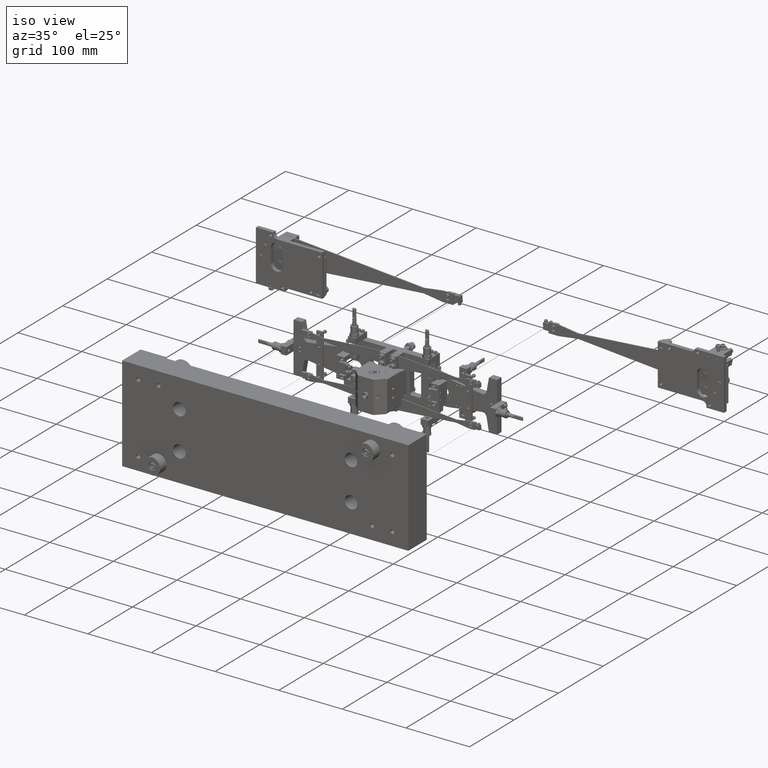
[diagram: clean part render]
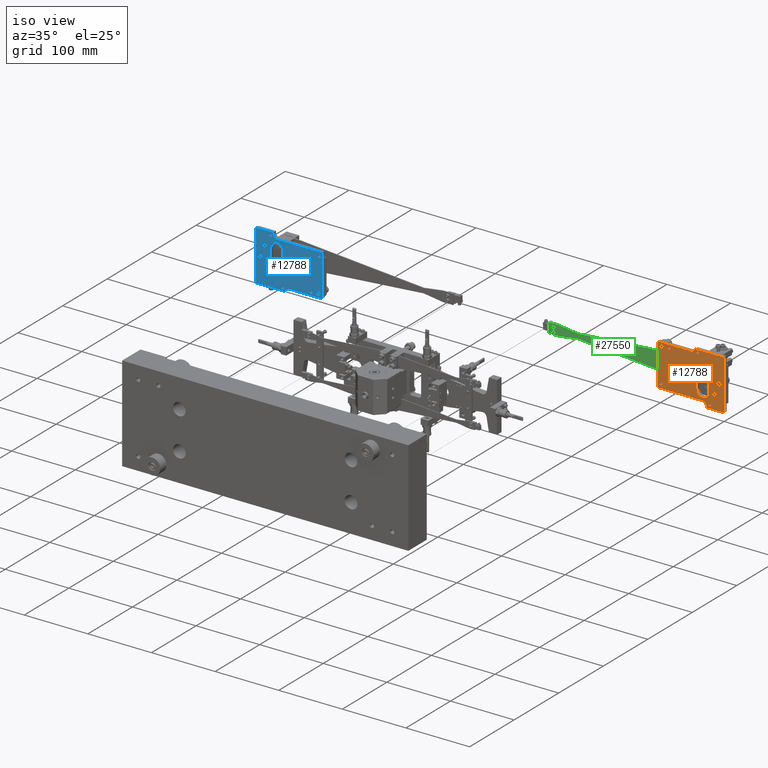
[diagram: same view with three faces highlighted in distinct colors, each labeled with its STEP entity id]
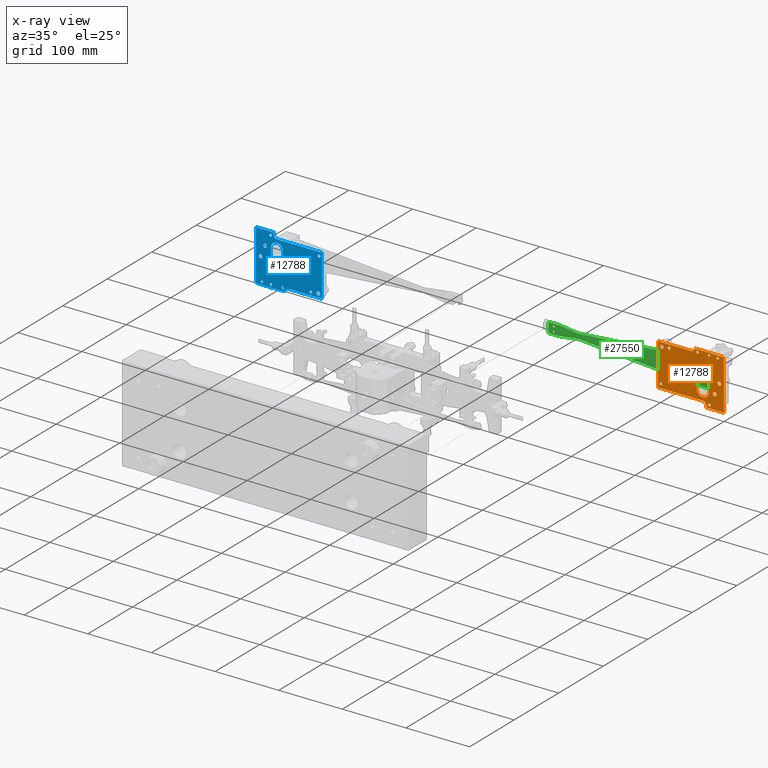
[diagram: x-ray of the same camera — body ghosted, the three highlighted faces saturated]
A machine part, iso view with three faces highlighted in distinct colors.
The next image is the same camera in x-ray (body ghosted, the three faces saturated) — at least one of them is partly hidden behind the body in this view.
Their STEP definitions:

[orange] entity #12788 — the highlighted planar face has unit normal (-0, 1, 0).
#120 = VECTOR ( 'NONE', #66383, 39.37007874015748100 ) ;
#169 = AXIS2_PLACEMENT_3D ( 'NONE', #18273, #54292, #23412 ) ;
#295 = LINE ( 'NONE', #49155, #1903 ) ;
#486 = ORIENTED_EDGE ( 'NONE', *, *, #64295, .F. ) ;
#817 = EDGE_CURVE ( 'NONE', #40714, #33942, #37384, .T. ) ;
#874 = ORIENTED_EDGE ( 'NONE', *, *, #43501, .T. ) ;
#881 = DIRECTION ( 'NONE',  ( -1.054711873393886700E-015, 8.881784197001151700E-016, 1.000000000000000000 ) ) ;
#901 = VERTEX_POINT ( 'NONE', #49514 ) ;
#1856 = VERTEX_POINT ( 'NONE', #15061 ) ;
#1878 = VERTEX_POINT ( 'NONE', #19987 ) ;
#1888 = DIRECTION ( 'NONE',  ( 0.0000000000000000000, 1.000000000000000000, 6.106226635438325500E-016 ) ) ;
#1903 = VECTOR ( 'NONE', #54338, 39.37007874015748100 ) ;
#2072 = CARTESIAN_POINT ( 'NONE',  ( -2.559055118110199300, 0.2362204724408052400, 0.4375496550452270800 ) ) ;
#2442 = AXIS2_PLACEMENT_3D ( 'NONE', #18528, #54549, #23695 ) ;
#2724 = EDGE_LOOP ( 'NONE', ( #27391, #5022 ) ) ;
#2829 = AXIS2_PLACEMENT_3D ( 'NONE', #32799, #1888, #37900 ) ;
#3291 = EDGE_CURVE ( 'NONE', #37937, #16223, #8103, .T. ) ;
#3482 = EDGE_LOOP ( 'NONE', ( #62775, #7053, #29532, #12511, #63963, #34082, #59148, #5008, #19353 ) ) ;
#3587 = CARTESIAN_POINT ( 'NONE',  ( -3.858267716535504400, 0.2362204724409451000, 1.786762253470460400 ) ) ;
#3657 = DIRECTION ( 'NONE',  ( 0.0000000000000000000, -1.000000000000000000, -6.106226635438325500E-016 ) ) ;
#3883 = VERTEX_POINT ( 'NONE', #29710 ) ;
#4597 = CARTESIAN_POINT ( 'NONE',  ( -2.066929133858289400, 0.2362204724409112100, -0.9942039206801501800 ) ) ;
#5008 = ORIENTED_EDGE ( 'NONE', *, *, #66371, .T. ) ;
#5019 = EDGE_CURVE ( 'NONE', #60706, #30838, #45100, .T. ) ;
#5022 = ORIENTED_EDGE ( 'NONE', *, *, #65708, .F. ) ;
#5315 = FACE_OUTER_BOUND ( 'NONE', #3482, .T. ) ;
#5571 = VERTEX_POINT ( 'NONE', #23361 ) ;
#5694 = CARTESIAN_POINT ( 'NONE',  ( -2.933070866141796400, 0.2362204724407811200, 1.550541781029503500 ) ) ;
#5710 = VERTEX_POINT ( 'NONE', #8946 ) ;
#5872 = ORIENTED_EDGE ( 'NONE', *, *, #64603, .T. ) ;
#6347 = VECTOR ( 'NONE', #62817, 39.37007874015748100 ) ;
#6878 = AXIS2_PLACEMENT_3D ( 'NONE', #55853, #24999, #61021 ) ;
#6943 = FACE_BOUND ( 'NONE', #33172, .T. ) ;
#7053 = ORIENTED_EDGE ( 'NONE', *, *, #14782, .T. ) ;
#7210 = DIRECTION ( 'NONE',  ( -1.000000000000000000, -5.551115123125700700E-017, 1.332267629550168100E-015 ) ) ;
#7220 = DIRECTION ( 'NONE',  ( -1.456985596620922800E-015, 6.374311985216537300E-016, 1.000000000000000000 ) ) ;
#7238 = VECTOR ( 'NONE', #881, 39.37007874015748100 ) ;
#7497 = DIRECTION ( 'NONE',  ( 0.0000000000000000000, 1.000000000000000000, 6.106226635438325500E-016 ) ) ;
#7707 = CARTESIAN_POINT ( 'NONE',  ( -2.961047036948467200, 0.2362204724409428500, -1.214077596773175600 ) ) ;
#8103 = CIRCLE ( 'NONE', #52593, 0.09000000000000095400 ) ;
#8571 = FACE_BOUND ( 'NONE', #58107, .T. ) ;
#8884 = LINE ( 'NONE', #61858, #7238 ) ;
#8946 = CARTESIAN_POINT ( 'NONE',  ( -2.216354183178005600, 0.2362204724408008000, 1.537364307673204200 ) ) ;
#9896 = CARTESIAN_POINT ( 'NONE',  ( -0.4645088474031506800, 0.2362204724408904500, 1.394087820379262200 ) ) ;
#10034 = CARTESIAN_POINT ( 'NONE',  ( -2.934055118110236600, 0.2362204724410609200, 0.4375496550452232500 ) ) ;
#11022 = VERTEX_POINT ( 'NONE', #3587 ) ;
#11581 = DIRECTION ( 'NONE',  ( 0.0000000000000000000, 1.000000000000000000, 6.106226635438325500E-016 ) ) ;
#11620 = CIRCLE ( 'NONE', #47130, 0.07874015748031584800 ) ;
#11702 = CARTESIAN_POINT ( 'NONE',  ( -3.484251968503975200, 0.2362204724408926100, 1.708022095990146600 ) ) ;
#12347 = CARTESIAN_POINT ( 'NONE',  ( -2.216354183178005600, 0.2362204724408008500, 1.627364307673205200 ) ) ;
#12511 = ORIENTED_EDGE ( 'NONE', *, *, #20955, .T. ) ;
#12761 = CARTESIAN_POINT ( 'NONE',  ( -2.216354183178005600, 0.2362204724408008500, 1.627364307673205200 ) ) ;
#12788 = ADVANCED_FACE ( 'NONE', ( #8571, #61717, #25495, #6943, #60152, #20670, #46442, #32804, #19076, #5315, #58549 ), #51024, .F. ) ;
#12804 = CARTESIAN_POINT ( 'NONE',  ( -3.484251968503975200, 0.2362204724408925900, 1.550541781029515900 ) ) ;
#13041 = LINE ( 'NONE', #40644, #66172 ) ;
#13045 = CARTESIAN_POINT ( 'NONE',  ( -2.559055118110216600, 0.2362204724410303400, -0.4309542819626399600 ) ) ;
#13362 = EDGE_CURVE ( 'NONE', #30121, #61654, #25433, .T. ) ;
#13444 = DIRECTION ( 'NONE',  ( 0.0000000000000000000, -1.000000000000000000, -6.106226635438325500E-016 ) ) ;
#14429 = ORIENTED_EDGE ( 'NONE', *, *, #13362, .T. ) ;
#14643 = VERTEX_POINT ( 'NONE', #38207 ) ;
#14782 = EDGE_CURVE ( 'NONE', #59122, #22074, #52369, .T. ) ;
#14920 = AXIS2_PLACEMENT_3D ( 'NONE', #12347, #48367, #17533 ) ;
#15061 = CARTESIAN_POINT ( 'NONE',  ( -2.775590551181137800, 0.2362204724409210600, -1.318897637795306300 ) ) ;
#15123 = DIRECTION ( 'NONE',  ( 1.517693329813463400E-015, -7.588466649067317000E-016, -1.000000000000000000 ) ) ;
#15243 = DIRECTION ( 'NONE',  ( 3.663735981262974000E-015, -6.661338147750862300E-016, -1.000000000000000000 ) ) ;
#16223 = VERTEX_POINT ( 'NONE', #23552 ) ;
#16458 = ORIENTED_EDGE ( 'NONE', *, *, #24368, .T. ) ;
#16487 = DIRECTION ( 'NONE',  ( 0.0000000000000000000, -1.000000000000000000, -6.106226635438325500E-016 ) ) ;
#16880 = VERTEX_POINT ( 'NONE', #7707 ) ;
#17482 = ORIENTED_EDGE ( 'NONE', *, *, #53499, .T. ) ;
#17533 = DIRECTION ( 'NONE',  ( 0.0000000000000000000, -7.588466649067317000E-016, -1.000000000000000000 ) ) ;
#17939 = DIRECTION ( 'NONE',  ( 0.0000000000000000000, -7.588466649067317000E-016, -1.000000000000000000 ) ) ;
#18034 = ORIENTED_EDGE ( 'NONE', *, *, #29175, .T. ) ;
#18225 = DIRECTION ( 'NONE',  ( 1.456985596620922800E-015, -6.374311985216537300E-016, -1.000000000000000000 ) ) ;
#18273 = CARTESIAN_POINT ( 'NONE',  ( -3.286914397751458300, 0.2362204724408904500, -0.4309575191541101200 ) ) ;
#18528 = CARTESIAN_POINT ( 'NONE',  ( 0.04999144790838175300, 0.2362204724410292300, -0.7465696594909726500 ) ) ;
#18694 = CARTESIAN_POINT ( 'NONE',  ( -2.933070866141796400, 0.2362204724407811800, 1.629281938509819200 ) ) ;
#19076 = FACE_BOUND ( 'NONE', #31140, .T. ) ;
#19298 = CIRCLE ( 'NONE', #24655, 0.3750000000000045000 ) ;
#19353 = ORIENTED_EDGE ( 'NONE', *, *, #27469, .T. ) ;
#19392 = EDGE_CURVE ( 'NONE', #11022, #14643, #295, .T. ) ;
#19510 = LINE ( 'NONE', #10034, #33241 ) ;
#19735 = CIRCLE ( 'NONE', #44241, 0.2500000000000030500 ) ;
#19987 = CARTESIAN_POINT ( 'NONE',  ( -2.961047036948467200, 0.2362204724409428500, -1.034077596773175000 ) ) ;
#20120 = CARTESIAN_POINT ( 'NONE',  ( -3.484251968503975200, 0.2362204724408926400, 1.629281938509831800 ) ) ;
#20150 = DIRECTION ( 'NONE',  ( -1.559232882975874300E-030, -1.000000000000000000, 6.661338147750861300E-016 ) ) ;
#20236 = LINE ( 'NONE', #61217, #61313 ) ;
#20652 = VERTEX_POINT ( 'NONE', #43607 ) ;
#20670 = FACE_BOUND ( 'NONE', #34622, .T. ) ;
#20955 = EDGE_CURVE ( 'NONE', #1856, #901, #13041, .T. ) ;
#20960 = ORIENTED_EDGE ( 'NONE', *, *, #34636, .T. ) ;
#21679 = ORIENTED_EDGE ( 'NONE', *, *, #817, .T. ) ;
#22074 = VERTEX_POINT ( 'NONE', #47444 ) ;
#22147 = DIRECTION ( 'NONE',  ( 0.0000000000000000000, 1.000000000000000000, 6.106226635438325500E-016 ) ) ;
#22370 = DIRECTION ( 'NONE',  ( 0.0000000000000000000, 1.000000000000000000, 6.106226635438325500E-016 ) ) ;
#22532 = CARTESIAN_POINT ( 'NONE',  ( -2.525590551181099700, 0.2362204724407713500, -0.9942039206801507300 ) ) ;
#22638 = EDGE_CURVE ( 'NONE', #3883, #5571, #51549, .T. ) ;
#22693 = CIRCLE ( 'NONE', #23260, 0.09000000000000081500 ) ;
#23137 = CARTESIAN_POINT ( 'NONE',  ( 0.04999144790838175300, 0.2362204724410292300, -0.7465696594909726500 ) ) ;
#23260 = AXIS2_PLACEMENT_3D ( 'NONE', #47320, #16487, #52502 ) ;
#23273 = CIRCLE ( 'NONE', #30518, 0.07874015748031584800 ) ;
#23361 = CARTESIAN_POINT ( 'NONE',  ( 2.048130814034795000E-015, 0.2362204724408062400, 1.478691387328690000 ) ) ;
#23412 = DIRECTION ( 'NONE',  ( 0.0000000000000000000, 5.782411586589301400E-016, 1.000000000000000000 ) ) ;
#23552 = CARTESIAN_POINT ( 'NONE',  ( -0.4645088474031505700, 0.2362204724408903900, 1.304087820379261200 ) ) ;
#23644 = CIRCLE ( 'NONE', #50818, 0.09000000000000095400 ) ;
#23695 = DIRECTION ( 'NONE',  ( 1.233125830473437200E-015, -7.588466649067306100E-016, -1.000000000000000000 ) ) ;
#23852 = DIRECTION ( 'NONE',  ( 0.0000000000000000000, -8.673617379883937900E-016, -1.000000000000000000 ) ) ;
#24335 = EDGE_LOOP ( 'NONE', ( #49993, #56388 ) ) ;
#24368 = EDGE_CURVE ( 'NONE', #5710, #32417, #23644, .T. ) ;
#24443 = ORIENTED_EDGE ( 'NONE', *, *, #39472, .T. ) ;
#24655 = AXIS2_PLACEMENT_3D ( 'NONE', #2072, #38082, #7220 ) ;
#24777 = DIRECTION ( 'NONE',  ( 0.0000000000000000000, -1.000000000000000000, -6.106226635438325500E-016 ) ) ;
#24824 = CARTESIAN_POINT ( 'NONE',  ( -2.961047036948467200, 0.2362204724409429100, -1.124077596773174600 ) ) ;
#24914 = LINE ( 'NONE', #42107, #6347 ) ;
#24999 = DIRECTION ( 'NONE',  ( 0.0000000000000000000, -1.000000000000000000, -6.106226635438325500E-016 ) ) ;
#25288 = DIRECTION ( 'NONE',  ( 0.0000000000000000000, -8.673617379883937900E-016, -1.000000000000000000 ) ) ;
#25433 = CIRCLE ( 'NONE', #2442, 0.09000000000000109300 ) ;
#25495 = FACE_BOUND ( 'NONE', #24335, .T. ) ;
#26002 = ORIENTED_EDGE ( 'NONE', *, *, #65712, .F. ) ;
#26913 = AXIS2_PLACEMENT_3D ( 'NONE', #53024, #22147, #58186 ) ;
#27069 = EDGE_CURVE ( 'NONE', #1878, #16880, #22693, .T. ) ;
#27391 = ORIENTED_EDGE ( 'NONE', *, *, #22638, .F. ) ;
#27469 = EDGE_CURVE ( 'NONE', #36533, #61081, #20236, .T. ) ;
#27598 = CIRCLE ( 'NONE', #14920, 0.09000000000000095400 ) ;
#28356 = DIRECTION ( 'NONE',  ( 1.233125830473437200E-015, -7.588466649067306100E-016, -1.000000000000000000 ) ) ;
#28456 = DIRECTION ( 'NONE',  ( 0.0000000000000000000, -1.000000000000000000, -6.106226635438325500E-016 ) ) ;
#28683 = VERTEX_POINT ( 'NONE', #60009 ) ;
#29153 = CARTESIAN_POINT ( 'NONE',  ( -3.286914397751399300, 0.2362204724408905300, -0.5490677553745823000 ) ) ;
#29175 = EDGE_CURVE ( 'NONE', #55148, #65826, #19298, .T. ) ;
#29182 = LINE ( 'NONE', #30439, #120 ) ;
#29245 = DIRECTION ( 'NONE',  ( 0.0000000000000000000, -1.000000000000000000, -6.106226635438325500E-016 ) ) ;
#29532 = ORIENTED_EDGE ( 'NONE', *, *, #53040, .T. ) ;
#29710 = CARTESIAN_POINT ( 'NONE',  ( 2.338134060817367600E-015, 0.2362204724408063800, 1.228691387328690200 ) ) ;
#30062 = DIRECTION ( 'NONE',  ( 0.0000000000000000000, -7.588466649067328800E-016, -1.000000000000000000 ) ) ;
#30121 = VERTEX_POINT ( 'NONE', #65439 ) ;
#30158 = VECTOR ( 'NONE', #7210, 39.37007874015748100 ) ;
#30326 = CARTESIAN_POINT ( 'NONE',  ( -2.559055118110216100, 0.2362204724410305600, -0.8059542819626400700 ) ) ;
#30439 = CARTESIAN_POINT ( 'NONE',  ( -2.184055118110266800, 0.2362204724409210600, 0.4375496550452519500 ) ) ;
#30518 = AXIS2_PLACEMENT_3D ( 'NONE', #55632, #24777, #60804 ) ;
#30838 = VERTEX_POINT ( 'NONE', #50563 ) ;
#31140 = EDGE_LOOP ( 'NONE', ( #66412, #44280 ) ) ;
#31375 = CIRCLE ( 'NONE', #55529, 0.07874015748031584800 ) ;
#31639 = VERTEX_POINT ( 'NONE', #33054 ) ;
#31856 = ORIENTED_EDGE ( 'NONE', *, *, #3291, .T. ) ;
#32253 = CARTESIAN_POINT ( 'NONE',  ( 0.04999144790838164900, 0.2362204724410291700, -0.6565696594909726800 ) ) ;
#32259 = CIRCLE ( 'NONE', #63681, 0.09000000000000109300 ) ;
#32417 = VERTEX_POINT ( 'NONE', #39445 ) ;
#32799 = CARTESIAN_POINT ( 'NONE',  ( -3.567051587444203300, 0.2362204724407724300, 0.2290043419386945900 ) ) ;
#32804 = FACE_BOUND ( 'NONE', #61171, .T. ) ;
#32888 = CARTESIAN_POINT ( 'NONE',  ( -2.184055118110266800, 0.2362204724409210600, 0.4375496550452519500 ) ) ;
#33054 = CARTESIAN_POINT ( 'NONE',  ( -3.567051587444189900, 0.2362204724407725200, 0.1108941057182218400 ) ) ;
#33172 = EDGE_LOOP ( 'NONE', ( #14429, #64143 ) ) ;
#33241 = VECTOR ( 'NONE', #15243, 39.37007874015748100 ) ;
#33480 = CARTESIAN_POINT ( 'NONE',  ( -2.934055118110236600, 0.2362204724410609200, 0.4375496550452232500 ) ) ;
#33942 = VERTEX_POINT ( 'NONE', #30326 ) ;
#34082 = ORIENTED_EDGE ( 'NONE', *, *, #19392, .T. ) ;
#34407 = EDGE_CURVE ( 'NONE', #16223, #37937, #61940, .T. ) ;
#34562 = CARTESIAN_POINT ( 'NONE',  ( -2.559055118110216600, 0.2362204724410303400, -0.4309542819626399600 ) ) ;
#34622 = EDGE_LOOP ( 'NONE', ( #26002, #38092 ) ) ;
#34636 = EDGE_CURVE ( 'NONE', #49132, #35191, #23273, .T. ) ;
#35191 = VERTEX_POINT ( 'NONE', #11702 ) ;
#36533 = VERTEX_POINT ( 'NONE', #47116 ) ;
#37384 = CIRCLE ( 'NONE', #37961, 0.3750000000000045000 ) ;
#37900 = DIRECTION ( 'NONE',  ( 0.0000000000000000000, 5.782411586589274800E-016, 1.000000000000000000 ) ) ;
#37937 = VERTEX_POINT ( 'NONE', #43689 ) ;
#37940 = EDGE_CURVE ( 'NONE', #30838, #60706, #31375, .T. ) ;
#37961 = AXIS2_PLACEMENT_3D ( 'NONE', #13045, #49062, #18225 ) ;
#38082 = DIRECTION ( 'NONE',  ( 0.0000000000000000000, -1.000000000000000000, -6.106226635438325500E-016 ) ) ;
#38092 = ORIENTED_EDGE ( 'NONE', *, *, #41141, .F. ) ;
#38207 = CARTESIAN_POINT ( 'NONE',  ( -2.066929133858241400, 0.2362204724407516700, 1.786762253470447700 ) ) ;
#38351 = CARTESIAN_POINT ( 'NONE',  ( -3.286914397751458300, 0.2362204724408904500, -0.4309575191541101200 ) ) ;
#39445 = CARTESIAN_POINT ( 'NONE',  ( -2.216354183178005600, 0.2362204724408008000, 1.717364307673205000 ) ) ;
#39472 = EDGE_CURVE ( 'NONE', #35191, #49132, #11620, .T. ) ;
#39676 = DIRECTION ( 'NONE',  ( 1.456985596620922800E-015, -6.374311985216537300E-016, -1.000000000000000000 ) ) ;
#39892 = EDGE_CURVE ( 'NONE', #61081, #59122, #43785, .T. ) ;
#40644 = CARTESIAN_POINT ( 'NONE',  ( -2.775590551181137800, 0.2362204724409210600, -1.318897637795306300 ) ) ;
#40714 = VERTEX_POINT ( 'NONE', #44938 ) ;
#40741 = DIRECTION ( 'NONE',  ( 1.221245327087657800E-015, -6.661338147750860400E-016, -1.000000000000000000 ) ) ;
#41141 = EDGE_CURVE ( 'NONE', #31639, #62878, #64264, .T. ) ;
#42107 = CARTESIAN_POINT ( 'NONE',  ( -0.1574803149606497400, 0.2362204724408915600, 1.589911859769648900 ) ) ;
#42402 = CARTESIAN_POINT ( 'NONE',  ( 2.185478394931410600E-015, 0.2362204724408063200, 1.353691387328690200 ) ) ;
#42981 = AXIS2_PLACEMENT_3D ( 'NONE', #4597, #20150, #56184 ) ;
#43501 = EDGE_CURVE ( 'NONE', #33942, #28683, #60038, .T. ) ;
#43533 = DIRECTION ( 'NONE',  ( 0.0000000000000000000, 5.782411586589301400E-016, 1.000000000000000000 ) ) ;
#43607 = CARTESIAN_POINT ( 'NONE',  ( -3.286914397751458300, 0.2362204724408905300, -0.3128472829336365600 ) ) ;
#43689 = CARTESIAN_POINT ( 'NONE',  ( -0.4645088474031507400, 0.2362204724408903900, 1.484087820379262000 ) ) ;
#43708 = VECTOR ( 'NONE', #45029, 39.37007874015748100 ) ;
#43785 = LINE ( 'NONE', #48468, #30158 ) ;
#43797 = EDGE_LOOP ( 'NONE', ( #16458, #17482 ) ) ;
#43833 = EDGE_CURVE ( 'NONE', #14643, #65648, #19735, .T. ) ;
#44241 = AXIS2_PLACEMENT_3D ( 'NONE', #44244, #13444, #49449 ) ;
#44244 = CARTESIAN_POINT ( 'NONE',  ( -1.822644219567093100, 0.2362204724410620300, 1.839911859769656000 ) ) ;
#44280 = ORIENTED_EDGE ( 'NONE', *, *, #37940, .T. ) ;
#44938 = CARTESIAN_POINT ( 'NONE',  ( -2.934055118110232100, 0.2362204724409112100, -0.4309542819626610000 ) ) ;
#45029 = DIRECTION ( 'NONE',  ( 1.221245327087657800E-015, -6.661338147750860400E-016, -1.000000000000000000 ) ) ;
#45100 = CIRCLE ( 'NONE', #6878, 0.07874015748031584800 ) ;
#45650 = AXIS2_PLACEMENT_3D ( 'NONE', #60042, #29245, #65188 ) ;
#45926 = DIRECTION ( 'NONE',  ( 0.0000000000000000000, -1.000000000000000000, -6.106226635438325500E-016 ) ) ;
#46442 = FACE_BOUND ( 'NONE', #61708, .T. ) ;
#46852 = AXIS2_PLACEMENT_3D ( 'NONE', #42402, #11581, #47615 ) ;
#47116 = CARTESIAN_POINT ( 'NONE',  ( 0.2362204724409451000, 0.2362204724409145100, 1.589911859769655800 ) ) ;
#47130 = AXIS2_PLACEMENT_3D ( 'NONE', #20120, #56147, #25288 ) ;
#47320 = CARTESIAN_POINT ( 'NONE',  ( -2.961047036948467200, 0.2362204724409429100, -1.124077596773174600 ) ) ;
#47444 = CARTESIAN_POINT ( 'NONE',  ( -2.775590551181159600, 0.2362204724407811800, -1.244203920680163800 ) ) ;
#47615 = DIRECTION ( 'NONE',  ( -1.221245327087656600E-015, 5.463695987328459400E-016, 1.000000000000000000 ) ) ;
#47815 = CIRCLE ( 'NONE', #61773, 0.1181102362204735800 ) ;
#47851 = CARTESIAN_POINT ( 'NONE',  ( -1.822644219567119300, 0.2362204724408052400, 1.589911859769656900 ) ) ;
#48367 = DIRECTION ( 'NONE',  ( 0.0000000000000000000, -1.000000000000000000, -6.106226635438325500E-016 ) ) ;
#48468 = CARTESIAN_POINT ( 'NONE',  ( -2.775590551181083200, 0.2362204724409451000, -0.9942039206801373000 ) ) ;
#48795 = DIRECTION ( 'NONE',  ( 0.0000000000000000000, -1.000000000000000000, -6.106226635438325500E-016 ) ) ;
#49005 = AXIS2_PLACEMENT_3D ( 'NONE', #34562, #3657, #39676 ) ;
#49062 = DIRECTION ( 'NONE',  ( 0.0000000000000000000, -1.000000000000000000, -6.106226635438325500E-016 ) ) ;
#49132 = VERTEX_POINT ( 'NONE', #12804 ) ;
#49155 = CARTESIAN_POINT ( 'NONE',  ( -2.066929133858241400, 0.2362204724407516700, 1.786762253470447700 ) ) ;
#49449 = DIRECTION ( 'NONE',  ( 1.092739197465691900E-015, -6.829619984160574200E-016, -1.000000000000000000 ) ) ;
#49514 = CARTESIAN_POINT ( 'NONE',  ( -3.858267716535556800, 0.2362204724407724300, -1.318897637795317200 ) ) ;
#49993 = ORIENTED_EDGE ( 'NONE', *, *, #52302, .T. ) ;
#50225 = ORIENTED_EDGE ( 'NONE', *, *, #63156, .F. ) ;
#50563 = CARTESIAN_POINT ( 'NONE',  ( -2.933070866141796400, 0.2362204724407811500, 1.708022095990134000 ) ) ;
#50794 = CIRCLE ( 'NONE', #2829, 0.1181102362204741200 ) ;
#50818 = AXIS2_PLACEMENT_3D ( 'NONE', #12761, #48795, #17939 ) ;
#51024 = PLANE ( 'NONE',  #42981 ) ;
#51549 = CIRCLE ( 'NONE', #46852, 0.1250000000000015300 ) ;
#51878 = CIRCLE ( 'NONE', #64867, 0.09000000000000081500 ) ;
#52302 = EDGE_CURVE ( 'NONE', #16880, #1878, #51878, .T. ) ;
#52369 = CIRCLE ( 'NONE', #45650, 0.2500000000000030500 ) ;
#52473 = AXIS2_PLACEMENT_3D ( 'NONE', #59286, #28456, #64416 ) ;
#52502 = DIRECTION ( 'NONE',  ( 0.0000000000000000000, -7.588466649067328800E-016, -1.000000000000000000 ) ) ;
#52526 = CIRCLE ( 'NONE', #169, 0.1181102362204735800 ) ;
#52593 = AXIS2_PLACEMENT_3D ( 'NONE', #9896, #45926, #15123 ) ;
#53024 = CARTESIAN_POINT ( 'NONE',  ( -3.567051587444203300, 0.2362204724407724300, 0.2290043419386945900 ) ) ;
#53040 = EDGE_CURVE ( 'NONE', #22074, #1856, #62217, .T. ) ;
#53251 = CARTESIAN_POINT ( 'NONE',  ( 2.185478394931410600E-015, 0.2362204724408063200, 1.353691387328690200 ) ) ;
#53499 = EDGE_CURVE ( 'NONE', #32417, #5710, #27598, .T. ) ;
#53595 = EDGE_CURVE ( 'NONE', #65826, #40714, #19510, .T. ) ;
#54292 = DIRECTION ( 'NONE',  ( 0.0000000000000000000, 1.000000000000000000, 6.106226635438325500E-016 ) ) ;
#54338 = DIRECTION ( 'NONE',  ( 1.000000000000000000, -5.551115123125701400E-017, -1.776356839400224400E-015 ) ) ;
#54549 = DIRECTION ( 'NONE',  ( 0.0000000000000000000, -1.000000000000000000, -6.106226635438325500E-016 ) ) ;
#54702 = DIRECTION ( 'NONE',  ( 0.0000000000000000000, -1.000000000000000000, -6.106226635438325500E-016 ) ) ;
#54868 = EDGE_CURVE ( 'NONE', #901, #11022, #8884, .T. ) ;
#55148 = VERTEX_POINT ( 'NONE', #32888 ) ;
#55213 = EDGE_CURVE ( 'NONE', #61654, #30121, #32259, .T. ) ;
#55529 = AXIS2_PLACEMENT_3D ( 'NONE', #18694, #54702, #23852 ) ;
#55632 = CARTESIAN_POINT ( 'NONE',  ( -3.484251968503975200, 0.2362204724408926400, 1.629281938509831800 ) ) ;
#55853 = CARTESIAN_POINT ( 'NONE',  ( -2.933070866141796400, 0.2362204724407811800, 1.629281938509819200 ) ) ;
#55911 = AXIS2_PLACEMENT_3D ( 'NONE', #53251, #22370, #58435 ) ;
#56147 = DIRECTION ( 'NONE',  ( 0.0000000000000000000, -1.000000000000000000, -6.106226635438325500E-016 ) ) ;
#56184 = DIRECTION ( 'NONE',  ( 1.221245327087657800E-015, -6.661338147750861300E-016, -1.000000000000000000 ) ) ;
#56191 = DIRECTION ( 'NONE',  ( -1.000000000000000000, -5.551115123125700700E-017, 1.332267629550168100E-015 ) ) ;
#56388 = ORIENTED_EDGE ( 'NONE', *, *, #27069, .T. ) ;
#56582 = ORIENTED_EDGE ( 'NONE', *, *, #53595, .T. ) ;
#58107 = EDGE_LOOP ( 'NONE', ( #5872, #18034, #56582, #21679, #874 ) ) ;
#58186 = DIRECTION ( 'NONE',  ( 0.0000000000000000000, 5.782411586589274800E-016, 1.000000000000000000 ) ) ;
#58435 = DIRECTION ( 'NONE',  ( -1.221245327087656600E-015, 5.463695987328459400E-016, 1.000000000000000000 ) ) ;
#58549 = FACE_BOUND ( 'NONE', #2724, .T. ) ;
#58673 = VERTEX_POINT ( 'NONE', #29153 ) ;
#59122 = VERTEX_POINT ( 'NONE', #22532 ) ;
#59148 = ORIENTED_EDGE ( 'NONE', *, *, #43833, .T. ) ;
#59188 = DIRECTION ( 'NONE',  ( 0.0000000000000000000, -1.000000000000000000, -6.106226635438325500E-016 ) ) ;
#59286 = CARTESIAN_POINT ( 'NONE',  ( -0.4645088474031506800, 0.2362204724408904500, 1.394087820379262200 ) ) ;
#59287 = ORIENTED_EDGE ( 'NONE', *, *, #34407, .T. ) ;
#59742 = CARTESIAN_POINT ( 'NONE',  ( 0.2362204724408970300, 0.2362204724409210600, -0.9942039206801602800 ) ) ;
#60009 = CARTESIAN_POINT ( 'NONE',  ( -2.184055118110223200, 0.2362204724409385500, -0.4309542819626492300 ) ) ;
#60038 = CIRCLE ( 'NONE', #49005, 0.3750000000000045000 ) ;
#60042 = CARTESIAN_POINT ( 'NONE',  ( -2.525590551181031700, 0.2362204724408041300, -1.244203920680146300 ) ) ;
#60152 = FACE_BOUND ( 'NONE', #65433, .T. ) ;
#60545 = CARTESIAN_POINT ( 'NONE',  ( -2.775590551181083200, 0.2362204724409451000, -0.9942039206801373000 ) ) ;
#60706 = VERTEX_POINT ( 'NONE', #5694 ) ;
#60804 = DIRECTION ( 'NONE',  ( 0.0000000000000000000, -8.673617379883937900E-016, -1.000000000000000000 ) ) ;
#60847 = DIRECTION ( 'NONE',  ( 0.0000000000000000000, -1.000000000000000000, -6.106226635438325500E-016 ) ) ;
#61021 = DIRECTION ( 'NONE',  ( 0.0000000000000000000, -8.673617379883937900E-016, -1.000000000000000000 ) ) ;
#61081 = VERTEX_POINT ( 'NONE', #59742 ) ;
#61171 = EDGE_LOOP ( 'NONE', ( #20960, #24443 ) ) ;
#61217 = CARTESIAN_POINT ( 'NONE',  ( 0.2362204724409756900, 0.2362204724409221500, 0.6398732120186867400 ) ) ;
#61313 = VECTOR ( 'NONE', #40741, 39.37007874015748100 ) ;
#61654 = VERTEX_POINT ( 'NONE', #32253 ) ;
#61708 = EDGE_LOOP ( 'NONE', ( #50225, #486 ) ) ;
#61717 = FACE_BOUND ( 'NONE', #43797, .T. ) ;
#61773 = AXIS2_PLACEMENT_3D ( 'NONE', #38351, #7497, #43533 ) ;
#61858 = CARTESIAN_POINT ( 'NONE',  ( -3.858267716535556800, 0.2362204724407724300, -1.318897637795317200 ) ) ;
#61940 = CIRCLE ( 'NONE', #52473, 0.09000000000000095400 ) ;
#61993 = CARTESIAN_POINT ( 'NONE',  ( -3.567051587444203300, 0.2362204724407725200, 0.3471145781591686900 ) ) ;
#62217 = LINE ( 'NONE', #60545, #43708 ) ;
#62775 = ORIENTED_EDGE ( 'NONE', *, *, #39892, .T. ) ;
#62817 = DIRECTION ( 'NONE',  ( 1.000000000000000000, -5.551115123125701400E-017, -1.776356839400224400E-015 ) ) ;
#62828 = CIRCLE ( 'NONE', #55911, 0.1250000000000015300 ) ;
#62878 = VERTEX_POINT ( 'NONE', #61993 ) ;
#63156 = EDGE_CURVE ( 'NONE', #20652, #58673, #47815, .T. ) ;
#63681 = AXIS2_PLACEMENT_3D ( 'NONE', #23137, #59188, #28356 ) ;
#63963 = ORIENTED_EDGE ( 'NONE', *, *, #54868, .T. ) ;
#64143 = ORIENTED_EDGE ( 'NONE', *, *, #55213, .T. ) ;
#64264 = CIRCLE ( 'NONE', #26913, 0.1181102362204741200 ) ;
#64295 = EDGE_CURVE ( 'NONE', #58673, #20652, #52526, .T. ) ;
#64416 = DIRECTION ( 'NONE',  ( 1.517693329813463400E-015, -7.588466649067317000E-016, -1.000000000000000000 ) ) ;
#64603 = EDGE_CURVE ( 'NONE', #28683, #55148, #29182, .T. ) ;
#64867 = AXIS2_PLACEMENT_3D ( 'NONE', #24824, #60847, #30062 ) ;
#65188 = DIRECTION ( 'NONE',  ( 2.185478394931383800E-015, -6.829619984160574200E-016, -1.000000000000000000 ) ) ;
#65433 = EDGE_LOOP ( 'NONE', ( #59287, #31856 ) ) ;
#65439 = CARTESIAN_POINT ( 'NONE',  ( 0.04999144790838186400, 0.2362204724410291700, -0.8365696594909737300 ) ) ;
#65648 = VERTEX_POINT ( 'NONE', #47851 ) ;
#65708 = EDGE_CURVE ( 'NONE', #5571, #3883, #62828, .T. ) ;
#65712 = EDGE_CURVE ( 'NONE', #62878, #31639, #50794, .T. ) ;
#65826 = VERTEX_POINT ( 'NONE', #33480 ) ;
#66172 = VECTOR ( 'NONE', #56191, 39.37007874015748100 ) ;
#66371 = EDGE_CURVE ( 'NONE', #65648, #36533, #24914, .T. ) ;
#66383 = DIRECTION ( 'NONE',  ( -4.052314039881774800E-015, 8.326672684688577400E-016, 1.000000000000000000 ) ) ;
#66412 = ORIENTED_EDGE ( 'NONE', *, *, #5019, .T. ) ;

[blue] entity #12788 — the highlighted planar face has unit normal (-0, 1, -0).
#120 = VECTOR ( 'NONE', #66383, 39.37007874015748100 ) ;
#169 = AXIS2_PLACEMENT_3D ( 'NONE', #18273, #54292, #23412 ) ;
#295 = LINE ( 'NONE', #49155, #1903 ) ;
#486 = ORIENTED_EDGE ( 'NONE', *, *, #64295, .F. ) ;
#817 = EDGE_CURVE ( 'NONE', #40714, #33942, #37384, .T. ) ;
#874 = ORIENTED_EDGE ( 'NONE', *, *, #43501, .T. ) ;
#881 = DIRECTION ( 'NONE',  ( -1.054711873393886700E-015, 8.881784197001151700E-016, 1.000000000000000000 ) ) ;
#901 = VERTEX_POINT ( 'NONE', #49514 ) ;
#1856 = VERTEX_POINT ( 'NONE', #15061 ) ;
#1878 = VERTEX_POINT ( 'NONE', #19987 ) ;
#1888 = DIRECTION ( 'NONE',  ( 0.0000000000000000000, 1.000000000000000000, 6.106226635438325500E-016 ) ) ;
#1903 = VECTOR ( 'NONE', #54338, 39.37007874015748100 ) ;
#2072 = CARTESIAN_POINT ( 'NONE',  ( -2.559055118110199300, 0.2362204724408052400, 0.4375496550452270800 ) ) ;
#2442 = AXIS2_PLACEMENT_3D ( 'NONE', #18528, #54549, #23695 ) ;
#2724 = EDGE_LOOP ( 'NONE', ( #27391, #5022 ) ) ;
#2829 = AXIS2_PLACEMENT_3D ( 'NONE', #32799, #1888, #37900 ) ;
#3291 = EDGE_CURVE ( 'NONE', #37937, #16223, #8103, .T. ) ;
#3482 = EDGE_LOOP ( 'NONE', ( #62775, #7053, #29532, #12511, #63963, #34082, #59148, #5008, #19353 ) ) ;
#3587 = CARTESIAN_POINT ( 'NONE',  ( -3.858267716535504400, 0.2362204724409451000, 1.786762253470460400 ) ) ;
#3657 = DIRECTION ( 'NONE',  ( 0.0000000000000000000, -1.000000000000000000, -6.106226635438325500E-016 ) ) ;
#3883 = VERTEX_POINT ( 'NONE', #29710 ) ;
#4597 = CARTESIAN_POINT ( 'NONE',  ( -2.066929133858289400, 0.2362204724409112100, -0.9942039206801501800 ) ) ;
#5008 = ORIENTED_EDGE ( 'NONE', *, *, #66371, .T. ) ;
#5019 = EDGE_CURVE ( 'NONE', #60706, #30838, #45100, .T. ) ;
#5022 = ORIENTED_EDGE ( 'NONE', *, *, #65708, .F. ) ;
#5315 = FACE_OUTER_BOUND ( 'NONE', #3482, .T. ) ;
#5571 = VERTEX_POINT ( 'NONE', #23361 ) ;
#5694 = CARTESIAN_POINT ( 'NONE',  ( -2.933070866141796400, 0.2362204724407811200, 1.550541781029503500 ) ) ;
#5710 = VERTEX_POINT ( 'NONE', #8946 ) ;
#5872 = ORIENTED_EDGE ( 'NONE', *, *, #64603, .T. ) ;
#6347 = VECTOR ( 'NONE', #62817, 39.37007874015748100 ) ;
#6878 = AXIS2_PLACEMENT_3D ( 'NONE', #55853, #24999, #61021 ) ;
#6943 = FACE_BOUND ( 'NONE', #33172, .T. ) ;
#7053 = ORIENTED_EDGE ( 'NONE', *, *, #14782, .T. ) ;
#7210 = DIRECTION ( 'NONE',  ( -1.000000000000000000, -5.551115123125700700E-017, 1.332267629550168100E-015 ) ) ;
#7220 = DIRECTION ( 'NONE',  ( -1.456985596620922800E-015, 6.374311985216537300E-016, 1.000000000000000000 ) ) ;
#7238 = VECTOR ( 'NONE', #881, 39.37007874015748100 ) ;
#7497 = DIRECTION ( 'NONE',  ( 0.0000000000000000000, 1.000000000000000000, 6.106226635438325500E-016 ) ) ;
#7707 = CARTESIAN_POINT ( 'NONE',  ( -2.961047036948467200, 0.2362204724409428500, -1.214077596773175600 ) ) ;
#8103 = CIRCLE ( 'NONE', #52593, 0.09000000000000095400 ) ;
#8571 = FACE_BOUND ( 'NONE', #58107, .T. ) ;
#8884 = LINE ( 'NONE', #61858, #7238 ) ;
#8946 = CARTESIAN_POINT ( 'NONE',  ( -2.216354183178005600, 0.2362204724408008000, 1.537364307673204200 ) ) ;
#9896 = CARTESIAN_POINT ( 'NONE',  ( -0.4645088474031506800, 0.2362204724408904500, 1.394087820379262200 ) ) ;
#10034 = CARTESIAN_POINT ( 'NONE',  ( -2.934055118110236600, 0.2362204724410609200, 0.4375496550452232500 ) ) ;
#11022 = VERTEX_POINT ( 'NONE', #3587 ) ;
#11581 = DIRECTION ( 'NONE',  ( 0.0000000000000000000, 1.000000000000000000, 6.106226635438325500E-016 ) ) ;
#11620 = CIRCLE ( 'NONE', #47130, 0.07874015748031584800 ) ;
#11702 = CARTESIAN_POINT ( 'NONE',  ( -3.484251968503975200, 0.2362204724408926100, 1.708022095990146600 ) ) ;
#12347 = CARTESIAN_POINT ( 'NONE',  ( -2.216354183178005600, 0.2362204724408008500, 1.627364307673205200 ) ) ;
#12511 = ORIENTED_EDGE ( 'NONE', *, *, #20955, .T. ) ;
#12761 = CARTESIAN_POINT ( 'NONE',  ( -2.216354183178005600, 0.2362204724408008500, 1.627364307673205200 ) ) ;
#12788 = ADVANCED_FACE ( 'NONE', ( #8571, #61717, #25495, #6943, #60152, #20670, #46442, #32804, #19076, #5315, #58549 ), #51024, .F. ) ;
#12804 = CARTESIAN_POINT ( 'NONE',  ( -3.484251968503975200, 0.2362204724408925900, 1.550541781029515900 ) ) ;
#13041 = LINE ( 'NONE', #40644, #66172 ) ;
#13045 = CARTESIAN_POINT ( 'NONE',  ( -2.559055118110216600, 0.2362204724410303400, -0.4309542819626399600 ) ) ;
#13362 = EDGE_CURVE ( 'NONE', #30121, #61654, #25433, .T. ) ;
#13444 = DIRECTION ( 'NONE',  ( 0.0000000000000000000, -1.000000000000000000, -6.106226635438325500E-016 ) ) ;
#14429 = ORIENTED_EDGE ( 'NONE', *, *, #13362, .T. ) ;
#14643 = VERTEX_POINT ( 'NONE', #38207 ) ;
#14782 = EDGE_CURVE ( 'NONE', #59122, #22074, #52369, .T. ) ;
#14920 = AXIS2_PLACEMENT_3D ( 'NONE', #12347, #48367, #17533 ) ;
#15061 = CARTESIAN_POINT ( 'NONE',  ( -2.775590551181137800, 0.2362204724409210600, -1.318897637795306300 ) ) ;
#15123 = DIRECTION ( 'NONE',  ( 1.517693329813463400E-015, -7.588466649067317000E-016, -1.000000000000000000 ) ) ;
#15243 = DIRECTION ( 'NONE',  ( 3.663735981262974000E-015, -6.661338147750862300E-016, -1.000000000000000000 ) ) ;
#16223 = VERTEX_POINT ( 'NONE', #23552 ) ;
#16458 = ORIENTED_EDGE ( 'NONE', *, *, #24368, .T. ) ;
#16487 = DIRECTION ( 'NONE',  ( 0.0000000000000000000, -1.000000000000000000, -6.106226635438325500E-016 ) ) ;
#16880 = VERTEX_POINT ( 'NONE', #7707 ) ;
#17482 = ORIENTED_EDGE ( 'NONE', *, *, #53499, .T. ) ;
#17533 = DIRECTION ( 'NONE',  ( 0.0000000000000000000, -7.588466649067317000E-016, -1.000000000000000000 ) ) ;
#17939 = DIRECTION ( 'NONE',  ( 0.0000000000000000000, -7.588466649067317000E-016, -1.000000000000000000 ) ) ;
#18034 = ORIENTED_EDGE ( 'NONE', *, *, #29175, .T. ) ;
#18225 = DIRECTION ( 'NONE',  ( 1.456985596620922800E-015, -6.374311985216537300E-016, -1.000000000000000000 ) ) ;
#18273 = CARTESIAN_POINT ( 'NONE',  ( -3.286914397751458300, 0.2362204724408904500, -0.4309575191541101200 ) ) ;
#18528 = CARTESIAN_POINT ( 'NONE',  ( 0.04999144790838175300, 0.2362204724410292300, -0.7465696594909726500 ) ) ;
#18694 = CARTESIAN_POINT ( 'NONE',  ( -2.933070866141796400, 0.2362204724407811800, 1.629281938509819200 ) ) ;
#19076 = FACE_BOUND ( 'NONE', #31140, .T. ) ;
#19298 = CIRCLE ( 'NONE', #24655, 0.3750000000000045000 ) ;
#19353 = ORIENTED_EDGE ( 'NONE', *, *, #27469, .T. ) ;
#19392 = EDGE_CURVE ( 'NONE', #11022, #14643, #295, .T. ) ;
#19510 = LINE ( 'NONE', #10034, #33241 ) ;
#19735 = CIRCLE ( 'NONE', #44241, 0.2500000000000030500 ) ;
#19987 = CARTESIAN_POINT ( 'NONE',  ( -2.961047036948467200, 0.2362204724409428500, -1.034077596773175000 ) ) ;
#20120 = CARTESIAN_POINT ( 'NONE',  ( -3.484251968503975200, 0.2362204724408926400, 1.629281938509831800 ) ) ;
#20150 = DIRECTION ( 'NONE',  ( -1.559232882975874300E-030, -1.000000000000000000, 6.661338147750861300E-016 ) ) ;
#20236 = LINE ( 'NONE', #61217, #61313 ) ;
#20652 = VERTEX_POINT ( 'NONE', #43607 ) ;
#20670 = FACE_BOUND ( 'NONE', #34622, .T. ) ;
#20955 = EDGE_CURVE ( 'NONE', #1856, #901, #13041, .T. ) ;
#20960 = ORIENTED_EDGE ( 'NONE', *, *, #34636, .T. ) ;
#21679 = ORIENTED_EDGE ( 'NONE', *, *, #817, .T. ) ;
#22074 = VERTEX_POINT ( 'NONE', #47444 ) ;
#22147 = DIRECTION ( 'NONE',  ( 0.0000000000000000000, 1.000000000000000000, 6.106226635438325500E-016 ) ) ;
#22370 = DIRECTION ( 'NONE',  ( 0.0000000000000000000, 1.000000000000000000, 6.106226635438325500E-016 ) ) ;
#22532 = CARTESIAN_POINT ( 'NONE',  ( -2.525590551181099700, 0.2362204724407713500, -0.9942039206801507300 ) ) ;
#22638 = EDGE_CURVE ( 'NONE', #3883, #5571, #51549, .T. ) ;
#22693 = CIRCLE ( 'NONE', #23260, 0.09000000000000081500 ) ;
#23137 = CARTESIAN_POINT ( 'NONE',  ( 0.04999144790838175300, 0.2362204724410292300, -0.7465696594909726500 ) ) ;
#23260 = AXIS2_PLACEMENT_3D ( 'NONE', #47320, #16487, #52502 ) ;
#23273 = CIRCLE ( 'NONE', #30518, 0.07874015748031584800 ) ;
#23361 = CARTESIAN_POINT ( 'NONE',  ( 2.048130814034795000E-015, 0.2362204724408062400, 1.478691387328690000 ) ) ;
#23412 = DIRECTION ( 'NONE',  ( 0.0000000000000000000, 5.782411586589301400E-016, 1.000000000000000000 ) ) ;
#23552 = CARTESIAN_POINT ( 'NONE',  ( -0.4645088474031505700, 0.2362204724408903900, 1.304087820379261200 ) ) ;
#23644 = CIRCLE ( 'NONE', #50818, 0.09000000000000095400 ) ;
#23695 = DIRECTION ( 'NONE',  ( 1.233125830473437200E-015, -7.588466649067306100E-016, -1.000000000000000000 ) ) ;
#23852 = DIRECTION ( 'NONE',  ( 0.0000000000000000000, -8.673617379883937900E-016, -1.000000000000000000 ) ) ;
#24335 = EDGE_LOOP ( 'NONE', ( #49993, #56388 ) ) ;
#24368 = EDGE_CURVE ( 'NONE', #5710, #32417, #23644, .T. ) ;
#24443 = ORIENTED_EDGE ( 'NONE', *, *, #39472, .T. ) ;
#24655 = AXIS2_PLACEMENT_3D ( 'NONE', #2072, #38082, #7220 ) ;
#24777 = DIRECTION ( 'NONE',  ( 0.0000000000000000000, -1.000000000000000000, -6.106226635438325500E-016 ) ) ;
#24824 = CARTESIAN_POINT ( 'NONE',  ( -2.961047036948467200, 0.2362204724409429100, -1.124077596773174600 ) ) ;
#24914 = LINE ( 'NONE', #42107, #6347 ) ;
#24999 = DIRECTION ( 'NONE',  ( 0.0000000000000000000, -1.000000000000000000, -6.106226635438325500E-016 ) ) ;
#25288 = DIRECTION ( 'NONE',  ( 0.0000000000000000000, -8.673617379883937900E-016, -1.000000000000000000 ) ) ;
#25433 = CIRCLE ( 'NONE', #2442, 0.09000000000000109300 ) ;
#25495 = FACE_BOUND ( 'NONE', #24335, .T. ) ;
#26002 = ORIENTED_EDGE ( 'NONE', *, *, #65712, .F. ) ;
#26913 = AXIS2_PLACEMENT_3D ( 'NONE', #53024, #22147, #58186 ) ;
#27069 = EDGE_CURVE ( 'NONE', #1878, #16880, #22693, .T. ) ;
#27391 = ORIENTED_EDGE ( 'NONE', *, *, #22638, .F. ) ;
#27469 = EDGE_CURVE ( 'NONE', #36533, #61081, #20236, .T. ) ;
#27598 = CIRCLE ( 'NONE', #14920, 0.09000000000000095400 ) ;
#28356 = DIRECTION ( 'NONE',  ( 1.233125830473437200E-015, -7.588466649067306100E-016, -1.000000000000000000 ) ) ;
#28456 = DIRECTION ( 'NONE',  ( 0.0000000000000000000, -1.000000000000000000, -6.106226635438325500E-016 ) ) ;
#28683 = VERTEX_POINT ( 'NONE', #60009 ) ;
#29153 = CARTESIAN_POINT ( 'NONE',  ( -3.286914397751399300, 0.2362204724408905300, -0.5490677553745823000 ) ) ;
#29175 = EDGE_CURVE ( 'NONE', #55148, #65826, #19298, .T. ) ;
#29182 = LINE ( 'NONE', #30439, #120 ) ;
#29245 = DIRECTION ( 'NONE',  ( 0.0000000000000000000, -1.000000000000000000, -6.106226635438325500E-016 ) ) ;
#29532 = ORIENTED_EDGE ( 'NONE', *, *, #53040, .T. ) ;
#29710 = CARTESIAN_POINT ( 'NONE',  ( 2.338134060817367600E-015, 0.2362204724408063800, 1.228691387328690200 ) ) ;
#30062 = DIRECTION ( 'NONE',  ( 0.0000000000000000000, -7.588466649067328800E-016, -1.000000000000000000 ) ) ;
#30121 = VERTEX_POINT ( 'NONE', #65439 ) ;
#30158 = VECTOR ( 'NONE', #7210, 39.37007874015748100 ) ;
#30326 = CARTESIAN_POINT ( 'NONE',  ( -2.559055118110216100, 0.2362204724410305600, -0.8059542819626400700 ) ) ;
#30439 = CARTESIAN_POINT ( 'NONE',  ( -2.184055118110266800, 0.2362204724409210600, 0.4375496550452519500 ) ) ;
#30518 = AXIS2_PLACEMENT_3D ( 'NONE', #55632, #24777, #60804 ) ;
#30838 = VERTEX_POINT ( 'NONE', #50563 ) ;
#31140 = EDGE_LOOP ( 'NONE', ( #66412, #44280 ) ) ;
#31375 = CIRCLE ( 'NONE', #55529, 0.07874015748031584800 ) ;
#31639 = VERTEX_POINT ( 'NONE', #33054 ) ;
#31856 = ORIENTED_EDGE ( 'NONE', *, *, #3291, .T. ) ;
#32253 = CARTESIAN_POINT ( 'NONE',  ( 0.04999144790838164900, 0.2362204724410291700, -0.6565696594909726800 ) ) ;
#32259 = CIRCLE ( 'NONE', #63681, 0.09000000000000109300 ) ;
#32417 = VERTEX_POINT ( 'NONE', #39445 ) ;
#32799 = CARTESIAN_POINT ( 'NONE',  ( -3.567051587444203300, 0.2362204724407724300, 0.2290043419386945900 ) ) ;
#32804 = FACE_BOUND ( 'NONE', #61171, .T. ) ;
#32888 = CARTESIAN_POINT ( 'NONE',  ( -2.184055118110266800, 0.2362204724409210600, 0.4375496550452519500 ) ) ;
#33054 = CARTESIAN_POINT ( 'NONE',  ( -3.567051587444189900, 0.2362204724407725200, 0.1108941057182218400 ) ) ;
#33172 = EDGE_LOOP ( 'NONE', ( #14429, #64143 ) ) ;
#33241 = VECTOR ( 'NONE', #15243, 39.37007874015748100 ) ;
#33480 = CARTESIAN_POINT ( 'NONE',  ( -2.934055118110236600, 0.2362204724410609200, 0.4375496550452232500 ) ) ;
#33942 = VERTEX_POINT ( 'NONE', #30326 ) ;
#34082 = ORIENTED_EDGE ( 'NONE', *, *, #19392, .T. ) ;
#34407 = EDGE_CURVE ( 'NONE', #16223, #37937, #61940, .T. ) ;
#34562 = CARTESIAN_POINT ( 'NONE',  ( -2.559055118110216600, 0.2362204724410303400, -0.4309542819626399600 ) ) ;
#34622 = EDGE_LOOP ( 'NONE', ( #26002, #38092 ) ) ;
#34636 = EDGE_CURVE ( 'NONE', #49132, #35191, #23273, .T. ) ;
#35191 = VERTEX_POINT ( 'NONE', #11702 ) ;
#36533 = VERTEX_POINT ( 'NONE', #47116 ) ;
#37384 = CIRCLE ( 'NONE', #37961, 0.3750000000000045000 ) ;
#37900 = DIRECTION ( 'NONE',  ( 0.0000000000000000000, 5.782411586589274800E-016, 1.000000000000000000 ) ) ;
#37937 = VERTEX_POINT ( 'NONE', #43689 ) ;
#37940 = EDGE_CURVE ( 'NONE', #30838, #60706, #31375, .T. ) ;
#37961 = AXIS2_PLACEMENT_3D ( 'NONE', #13045, #49062, #18225 ) ;
#38082 = DIRECTION ( 'NONE',  ( 0.0000000000000000000, -1.000000000000000000, -6.106226635438325500E-016 ) ) ;
#38092 = ORIENTED_EDGE ( 'NONE', *, *, #41141, .F. ) ;
#38207 = CARTESIAN_POINT ( 'NONE',  ( -2.066929133858241400, 0.2362204724407516700, 1.786762253470447700 ) ) ;
#38351 = CARTESIAN_POINT ( 'NONE',  ( -3.286914397751458300, 0.2362204724408904500, -0.4309575191541101200 ) ) ;
#39445 = CARTESIAN_POINT ( 'NONE',  ( -2.216354183178005600, 0.2362204724408008000, 1.717364307673205000 ) ) ;
#39472 = EDGE_CURVE ( 'NONE', #35191, #49132, #11620, .T. ) ;
#39676 = DIRECTION ( 'NONE',  ( 1.456985596620922800E-015, -6.374311985216537300E-016, -1.000000000000000000 ) ) ;
#39892 = EDGE_CURVE ( 'NONE', #61081, #59122, #43785, .T. ) ;
#40644 = CARTESIAN_POINT ( 'NONE',  ( -2.775590551181137800, 0.2362204724409210600, -1.318897637795306300 ) ) ;
#40714 = VERTEX_POINT ( 'NONE', #44938 ) ;
#40741 = DIRECTION ( 'NONE',  ( 1.221245327087657800E-015, -6.661338147750860400E-016, -1.000000000000000000 ) ) ;
#41141 = EDGE_CURVE ( 'NONE', #31639, #62878, #64264, .T. ) ;
#42107 = CARTESIAN_POINT ( 'NONE',  ( -0.1574803149606497400, 0.2362204724408915600, 1.589911859769648900 ) ) ;
#42402 = CARTESIAN_POINT ( 'NONE',  ( 2.185478394931410600E-015, 0.2362204724408063200, 1.353691387328690200 ) ) ;
#42981 = AXIS2_PLACEMENT_3D ( 'NONE', #4597, #20150, #56184 ) ;
#43501 = EDGE_CURVE ( 'NONE', #33942, #28683, #60038, .T. ) ;
#43533 = DIRECTION ( 'NONE',  ( 0.0000000000000000000, 5.782411586589301400E-016, 1.000000000000000000 ) ) ;
#43607 = CARTESIAN_POINT ( 'NONE',  ( -3.286914397751458300, 0.2362204724408905300, -0.3128472829336365600 ) ) ;
#43689 = CARTESIAN_POINT ( 'NONE',  ( -0.4645088474031507400, 0.2362204724408903900, 1.484087820379262000 ) ) ;
#43708 = VECTOR ( 'NONE', #45029, 39.37007874015748100 ) ;
#43785 = LINE ( 'NONE', #48468, #30158 ) ;
#43797 = EDGE_LOOP ( 'NONE', ( #16458, #17482 ) ) ;
#43833 = EDGE_CURVE ( 'NONE', #14643, #65648, #19735, .T. ) ;
#44241 = AXIS2_PLACEMENT_3D ( 'NONE', #44244, #13444, #49449 ) ;
#44244 = CARTESIAN_POINT ( 'NONE',  ( -1.822644219567093100, 0.2362204724410620300, 1.839911859769656000 ) ) ;
#44280 = ORIENTED_EDGE ( 'NONE', *, *, #37940, .T. ) ;
#44938 = CARTESIAN_POINT ( 'NONE',  ( -2.934055118110232100, 0.2362204724409112100, -0.4309542819626610000 ) ) ;
#45029 = DIRECTION ( 'NONE',  ( 1.221245327087657800E-015, -6.661338147750860400E-016, -1.000000000000000000 ) ) ;
#45100 = CIRCLE ( 'NONE', #6878, 0.07874015748031584800 ) ;
#45650 = AXIS2_PLACEMENT_3D ( 'NONE', #60042, #29245, #65188 ) ;
#45926 = DIRECTION ( 'NONE',  ( 0.0000000000000000000, -1.000000000000000000, -6.106226635438325500E-016 ) ) ;
#46442 = FACE_BOUND ( 'NONE', #61708, .T. ) ;
#46852 = AXIS2_PLACEMENT_3D ( 'NONE', #42402, #11581, #47615 ) ;
#47116 = CARTESIAN_POINT ( 'NONE',  ( 0.2362204724409451000, 0.2362204724409145100, 1.589911859769655800 ) ) ;
#47130 = AXIS2_PLACEMENT_3D ( 'NONE', #20120, #56147, #25288 ) ;
#47320 = CARTESIAN_POINT ( 'NONE',  ( -2.961047036948467200, 0.2362204724409429100, -1.124077596773174600 ) ) ;
#47444 = CARTESIAN_POINT ( 'NONE',  ( -2.775590551181159600, 0.2362204724407811800, -1.244203920680163800 ) ) ;
#47615 = DIRECTION ( 'NONE',  ( -1.221245327087656600E-015, 5.463695987328459400E-016, 1.000000000000000000 ) ) ;
#47815 = CIRCLE ( 'NONE', #61773, 0.1181102362204735800 ) ;
#47851 = CARTESIAN_POINT ( 'NONE',  ( -1.822644219567119300, 0.2362204724408052400, 1.589911859769656900 ) ) ;
#48367 = DIRECTION ( 'NONE',  ( 0.0000000000000000000, -1.000000000000000000, -6.106226635438325500E-016 ) ) ;
#48468 = CARTESIAN_POINT ( 'NONE',  ( -2.775590551181083200, 0.2362204724409451000, -0.9942039206801373000 ) ) ;
#48795 = DIRECTION ( 'NONE',  ( 0.0000000000000000000, -1.000000000000000000, -6.106226635438325500E-016 ) ) ;
#49005 = AXIS2_PLACEMENT_3D ( 'NONE', #34562, #3657, #39676 ) ;
#49062 = DIRECTION ( 'NONE',  ( 0.0000000000000000000, -1.000000000000000000, -6.106226635438325500E-016 ) ) ;
#49132 = VERTEX_POINT ( 'NONE', #12804 ) ;
#49155 = CARTESIAN_POINT ( 'NONE',  ( -2.066929133858241400, 0.2362204724407516700, 1.786762253470447700 ) ) ;
#49449 = DIRECTION ( 'NONE',  ( 1.092739197465691900E-015, -6.829619984160574200E-016, -1.000000000000000000 ) ) ;
#49514 = CARTESIAN_POINT ( 'NONE',  ( -3.858267716535556800, 0.2362204724407724300, -1.318897637795317200 ) ) ;
#49993 = ORIENTED_EDGE ( 'NONE', *, *, #52302, .T. ) ;
#50225 = ORIENTED_EDGE ( 'NONE', *, *, #63156, .F. ) ;
#50563 = CARTESIAN_POINT ( 'NONE',  ( -2.933070866141796400, 0.2362204724407811500, 1.708022095990134000 ) ) ;
#50794 = CIRCLE ( 'NONE', #2829, 0.1181102362204741200 ) ;
#50818 = AXIS2_PLACEMENT_3D ( 'NONE', #12761, #48795, #17939 ) ;
#51024 = PLANE ( 'NONE',  #42981 ) ;
#51549 = CIRCLE ( 'NONE', #46852, 0.1250000000000015300 ) ;
#51878 = CIRCLE ( 'NONE', #64867, 0.09000000000000081500 ) ;
#52302 = EDGE_CURVE ( 'NONE', #16880, #1878, #51878, .T. ) ;
#52369 = CIRCLE ( 'NONE', #45650, 0.2500000000000030500 ) ;
#52473 = AXIS2_PLACEMENT_3D ( 'NONE', #59286, #28456, #64416 ) ;
#52502 = DIRECTION ( 'NONE',  ( 0.0000000000000000000, -7.588466649067328800E-016, -1.000000000000000000 ) ) ;
#52526 = CIRCLE ( 'NONE', #169, 0.1181102362204735800 ) ;
#52593 = AXIS2_PLACEMENT_3D ( 'NONE', #9896, #45926, #15123 ) ;
#53024 = CARTESIAN_POINT ( 'NONE',  ( -3.567051587444203300, 0.2362204724407724300, 0.2290043419386945900 ) ) ;
#53040 = EDGE_CURVE ( 'NONE', #22074, #1856, #62217, .T. ) ;
#53251 = CARTESIAN_POINT ( 'NONE',  ( 2.185478394931410600E-015, 0.2362204724408063200, 1.353691387328690200 ) ) ;
#53499 = EDGE_CURVE ( 'NONE', #32417, #5710, #27598, .T. ) ;
#53595 = EDGE_CURVE ( 'NONE', #65826, #40714, #19510, .T. ) ;
#54292 = DIRECTION ( 'NONE',  ( 0.0000000000000000000, 1.000000000000000000, 6.106226635438325500E-016 ) ) ;
#54338 = DIRECTION ( 'NONE',  ( 1.000000000000000000, -5.551115123125701400E-017, -1.776356839400224400E-015 ) ) ;
#54549 = DIRECTION ( 'NONE',  ( 0.0000000000000000000, -1.000000000000000000, -6.106226635438325500E-016 ) ) ;
#54702 = DIRECTION ( 'NONE',  ( 0.0000000000000000000, -1.000000000000000000, -6.106226635438325500E-016 ) ) ;
#54868 = EDGE_CURVE ( 'NONE', #901, #11022, #8884, .T. ) ;
#55148 = VERTEX_POINT ( 'NONE', #32888 ) ;
#55213 = EDGE_CURVE ( 'NONE', #61654, #30121, #32259, .T. ) ;
#55529 = AXIS2_PLACEMENT_3D ( 'NONE', #18694, #54702, #23852 ) ;
#55632 = CARTESIAN_POINT ( 'NONE',  ( -3.484251968503975200, 0.2362204724408926400, 1.629281938509831800 ) ) ;
#55853 = CARTESIAN_POINT ( 'NONE',  ( -2.933070866141796400, 0.2362204724407811800, 1.629281938509819200 ) ) ;
#55911 = AXIS2_PLACEMENT_3D ( 'NONE', #53251, #22370, #58435 ) ;
#56147 = DIRECTION ( 'NONE',  ( 0.0000000000000000000, -1.000000000000000000, -6.106226635438325500E-016 ) ) ;
#56184 = DIRECTION ( 'NONE',  ( 1.221245327087657800E-015, -6.661338147750861300E-016, -1.000000000000000000 ) ) ;
#56191 = DIRECTION ( 'NONE',  ( -1.000000000000000000, -5.551115123125700700E-017, 1.332267629550168100E-015 ) ) ;
#56388 = ORIENTED_EDGE ( 'NONE', *, *, #27069, .T. ) ;
#56582 = ORIENTED_EDGE ( 'NONE', *, *, #53595, .T. ) ;
#58107 = EDGE_LOOP ( 'NONE', ( #5872, #18034, #56582, #21679, #874 ) ) ;
#58186 = DIRECTION ( 'NONE',  ( 0.0000000000000000000, 5.782411586589274800E-016, 1.000000000000000000 ) ) ;
#58435 = DIRECTION ( 'NONE',  ( -1.221245327087656600E-015, 5.463695987328459400E-016, 1.000000000000000000 ) ) ;
#58549 = FACE_BOUND ( 'NONE', #2724, .T. ) ;
#58673 = VERTEX_POINT ( 'NONE', #29153 ) ;
#59122 = VERTEX_POINT ( 'NONE', #22532 ) ;
#59148 = ORIENTED_EDGE ( 'NONE', *, *, #43833, .T. ) ;
#59188 = DIRECTION ( 'NONE',  ( 0.0000000000000000000, -1.000000000000000000, -6.106226635438325500E-016 ) ) ;
#59286 = CARTESIAN_POINT ( 'NONE',  ( -0.4645088474031506800, 0.2362204724408904500, 1.394087820379262200 ) ) ;
#59287 = ORIENTED_EDGE ( 'NONE', *, *, #34407, .T. ) ;
#59742 = CARTESIAN_POINT ( 'NONE',  ( 0.2362204724408970300, 0.2362204724409210600, -0.9942039206801602800 ) ) ;
#60009 = CARTESIAN_POINT ( 'NONE',  ( -2.184055118110223200, 0.2362204724409385500, -0.4309542819626492300 ) ) ;
#60038 = CIRCLE ( 'NONE', #49005, 0.3750000000000045000 ) ;
#60042 = CARTESIAN_POINT ( 'NONE',  ( -2.525590551181031700, 0.2362204724408041300, -1.244203920680146300 ) ) ;
#60152 = FACE_BOUND ( 'NONE', #65433, .T. ) ;
#60545 = CARTESIAN_POINT ( 'NONE',  ( -2.775590551181083200, 0.2362204724409451000, -0.9942039206801373000 ) ) ;
#60706 = VERTEX_POINT ( 'NONE', #5694 ) ;
#60804 = DIRECTION ( 'NONE',  ( 0.0000000000000000000, -8.673617379883937900E-016, -1.000000000000000000 ) ) ;
#60847 = DIRECTION ( 'NONE',  ( 0.0000000000000000000, -1.000000000000000000, -6.106226635438325500E-016 ) ) ;
#61021 = DIRECTION ( 'NONE',  ( 0.0000000000000000000, -8.673617379883937900E-016, -1.000000000000000000 ) ) ;
#61081 = VERTEX_POINT ( 'NONE', #59742 ) ;
#61171 = EDGE_LOOP ( 'NONE', ( #20960, #24443 ) ) ;
#61217 = CARTESIAN_POINT ( 'NONE',  ( 0.2362204724409756900, 0.2362204724409221500, 0.6398732120186867400 ) ) ;
#61313 = VECTOR ( 'NONE', #40741, 39.37007874015748100 ) ;
#61654 = VERTEX_POINT ( 'NONE', #32253 ) ;
#61708 = EDGE_LOOP ( 'NONE', ( #50225, #486 ) ) ;
#61717 = FACE_BOUND ( 'NONE', #43797, .T. ) ;
#61773 = AXIS2_PLACEMENT_3D ( 'NONE', #38351, #7497, #43533 ) ;
#61858 = CARTESIAN_POINT ( 'NONE',  ( -3.858267716535556800, 0.2362204724407724300, -1.318897637795317200 ) ) ;
#61940 = CIRCLE ( 'NONE', #52473, 0.09000000000000095400 ) ;
#61993 = CARTESIAN_POINT ( 'NONE',  ( -3.567051587444203300, 0.2362204724407725200, 0.3471145781591686900 ) ) ;
#62217 = LINE ( 'NONE', #60545, #43708 ) ;
#62775 = ORIENTED_EDGE ( 'NONE', *, *, #39892, .T. ) ;
#62817 = DIRECTION ( 'NONE',  ( 1.000000000000000000, -5.551115123125701400E-017, -1.776356839400224400E-015 ) ) ;
#62828 = CIRCLE ( 'NONE', #55911, 0.1250000000000015300 ) ;
#62878 = VERTEX_POINT ( 'NONE', #61993 ) ;
#63156 = EDGE_CURVE ( 'NONE', #20652, #58673, #47815, .T. ) ;
#63681 = AXIS2_PLACEMENT_3D ( 'NONE', #23137, #59188, #28356 ) ;
#63963 = ORIENTED_EDGE ( 'NONE', *, *, #54868, .T. ) ;
#64143 = ORIENTED_EDGE ( 'NONE', *, *, #55213, .T. ) ;
#64264 = CIRCLE ( 'NONE', #26913, 0.1181102362204741200 ) ;
#64295 = EDGE_CURVE ( 'NONE', #58673, #20652, #52526, .T. ) ;
#64416 = DIRECTION ( 'NONE',  ( 1.517693329813463400E-015, -7.588466649067317000E-016, -1.000000000000000000 ) ) ;
#64603 = EDGE_CURVE ( 'NONE', #28683, #55148, #29182, .T. ) ;
#64867 = AXIS2_PLACEMENT_3D ( 'NONE', #24824, #60847, #30062 ) ;
#65188 = DIRECTION ( 'NONE',  ( 2.185478394931383800E-015, -6.829619984160574200E-016, -1.000000000000000000 ) ) ;
#65433 = EDGE_LOOP ( 'NONE', ( #59287, #31856 ) ) ;
#65439 = CARTESIAN_POINT ( 'NONE',  ( 0.04999144790838186400, 0.2362204724410291700, -0.8365696594909737300 ) ) ;
#65648 = VERTEX_POINT ( 'NONE', #47851 ) ;
#65708 = EDGE_CURVE ( 'NONE', #5571, #3883, #62828, .T. ) ;
#65712 = EDGE_CURVE ( 'NONE', #62878, #31639, #50794, .T. ) ;
#65826 = VERTEX_POINT ( 'NONE', #33480 ) ;
#66172 = VECTOR ( 'NONE', #56191, 39.37007874015748100 ) ;
#66371 = EDGE_CURVE ( 'NONE', #65648, #36533, #24914, .T. ) ;
#66383 = DIRECTION ( 'NONE',  ( -4.052314039881774800E-015, 8.326672684688577400E-016, 1.000000000000000000 ) ) ;
#66412 = ORIENTED_EDGE ( 'NONE', *, *, #5019, .T. ) ;

[green] entity #27550 — the highlighted planar face has unit normal (0, -1, -0).
#1373 = CARTESIAN_POINT ( 'NONE',  ( -10.62814513668365800, -0.05905511811023846100, 1.099960629921259000 ) ) ;
#1511 = DIRECTION ( 'NONE',  ( 1.000000000000000000, 2.220446049250313100E-016, 5.551115123125782700E-017 ) ) ;
#2523 = VECTOR ( 'NONE', #9709, 39.37007874015748100 ) ;
#2707 = CARTESIAN_POINT ( 'NONE',  ( -9.998223876841144900, -0.05905511811024064700, 0.4700393700787403600 ) ) ;
#3299 = FACE_BOUND ( 'NONE', #5896, .T. ) ;
#3561 = VERTEX_POINT ( 'NONE', #57628 ) ;
#4672 = CARTESIAN_POINT ( 'NONE',  ( -10.30314513668366200, -0.05905511811023846100, 0.9227952755905501900 ) ) ;
#5130 = DIRECTION ( 'NONE',  ( 2.220446049250312800E-016, -1.000000000000000000, 2.775557561562891400E-016 ) ) ;
#5896 = EDGE_LOOP ( 'NONE', ( #55037, #53440 ) ) ;
#5978 = DIRECTION ( 'NONE',  ( -0.9904228327074362500, -1.665334536937735600E-016, 0.1380674199504642900 ) ) ;
#6326 = EDGE_CURVE ( 'NONE', #44889, #38308, #44680, .T. ) ;
#6870 = AXIS2_PLACEMENT_3D ( 'NONE', #36038, #5130, #41188 ) ;
#6912 = DIRECTION ( 'NONE',  ( 1.110223024625156500E-016, -1.000000000000000000, 2.775557561562891400E-016 ) ) ;
#7088 = VERTEX_POINT ( 'NONE', #40092 ) ;
#7679 = ORIENTED_EDGE ( 'NONE', *, *, #37628, .F. ) ;
#7701 = CARTESIAN_POINT ( 'NONE',  ( -8.799223876841139700, -0.05905511811023846100, 0.6371829688062431400 ) ) ;
#8365 = DIRECTION ( 'NONE',  ( 1.110223024625156500E-016, -1.000000000000000000, 2.775557561562891400E-016 ) ) ;
#9709 = DIRECTION ( 'NONE',  ( 0.0000000000000000000, 2.775557561562892300E-016, -1.000000000000000000 ) ) ;
#9867 = DIRECTION ( 'NONE',  ( 1.000000000000000000, 2.943801717310612700E-016, 0.0000000000000000000 ) ) ;
#10478 = ORIENTED_EDGE ( 'NONE', *, *, #6326, .T. ) ;
#11979 = CARTESIAN_POINT ( 'NONE',  ( -9.998223876841137800, -0.05905511811023846100, 1.099960629921260100 ) ) ;
#12115 = LINE ( 'NONE', #58481, #37864 ) ;
#12371 = ORIENTED_EDGE ( 'NONE', *, *, #17985, .T. ) ;
#13091 = VERTEX_POINT ( 'NONE', #47610 ) ;
#13381 = EDGE_CURVE ( 'NONE', #57971, #3561, #51247, .T. ) ;
#13737 = VERTEX_POINT ( 'NONE', #36514 ) ;
#14391 = EDGE_LOOP ( 'NONE', ( #7679, #60799 ) ) ;
#15145 = CARTESIAN_POINT ( 'NONE',  ( -0.7874015748031481000, -0.05905511811023846100, 1.569999999999999800 ) ) ;
#15848 = CARTESIAN_POINT ( 'NONE',  ( -10.30314513668366200, -0.05905511811023846100, 0.6472047244094469900 ) ) ;
#16287 = AXIS2_PLACEMENT_3D ( 'NONE', #39238, #8365, #44392 ) ;
#16526 = VECTOR ( 'NONE', #1511, 39.37007874015748100 ) ;
#17985 = EDGE_CURVE ( 'NONE', #31979, #7088, #61639, .T. ) ;
#18395 = EDGE_CURVE ( 'NONE', #38308, #21614, #55989, .T. ) ;
#19343 = VERTEX_POINT ( 'NONE', #7701 ) ;
#20127 = EDGE_CURVE ( 'NONE', #13091, #31979, #22767, .T. ) ;
#20695 = CARTESIAN_POINT ( 'NONE',  ( -10.62814513668366200, -0.05905511811024064700, 0.4700393700787403600 ) ) ;
#20982 = DIRECTION ( 'NONE',  ( 1.000000000000000000, 2.943801717310612700E-016, 0.0000000000000000000 ) ) ;
#21614 = VERTEX_POINT ( 'NONE', #49074 ) ;
#22767 = LINE ( 'NONE', #39617, #50189 ) ;
#22823 = EDGE_LOOP ( 'NONE', ( #12371, #36168, #10478, #26059, #42250, #45902, #64386, #49810 ) ) ;
#23574 = VECTOR ( 'NONE', #44138, 39.37007874015748100 ) ;
#25043 = EDGE_CURVE ( 'NONE', #21614, #19343, #63043, .T. ) ;
#26058 = CIRCLE ( 'NONE', #54928, 0.05800000000000030800 ) ;
#26059 = ORIENTED_EDGE ( 'NONE', *, *, #18395, .T. ) ;
#27550 = ADVANCED_FACE ( 'NONE', ( #56472, #3299, #58109 ), #30899, .T. ) ;
#29331 = DIRECTION ( 'NONE',  ( -0.9968523861653423300, -2.220446049250313100E-016, -0.07928001132986273200 ) ) ;
#30899 = PLANE ( 'NONE',  #6870 ) ;
#31979 = VERTEX_POINT ( 'NONE', #36591 ) ;
#32404 = CARTESIAN_POINT ( 'NONE',  ( -10.62814513668366200, -0.05905511811024064700, 0.4700393700787403600 ) ) ;
#32611 = EDGE_CURVE ( 'NONE', #13091, #59848, #55720, .T. ) ;
#33624 = EDGE_CURVE ( 'NONE', #19343, #59848, #12115, .T. ) ;
#34334 = VECTOR ( 'NONE', #5978, 39.37007874015748100 ) ;
#36038 = CARTESIAN_POINT ( 'NONE',  ( -5.707773355743403200, -0.05905511811024064700, 0.7850000000000004800 ) ) ;
#36168 = ORIENTED_EDGE ( 'NONE', *, *, #37800, .T. ) ;
#36514 = CARTESIAN_POINT ( 'NONE',  ( -10.24514513668366300, -0.05905511811023845400, 0.9227952755905504100 ) ) ;
#36591 = CARTESIAN_POINT ( 'NONE',  ( -8.799223876841141500, -0.05905511811023846100, 0.9328170311937589200 ) ) ;
#37628 = EDGE_CURVE ( 'NONE', #3561, #57971, #65670, .T. ) ;
#37777 = CARTESIAN_POINT ( 'NONE',  ( -10.30314513668366200, -0.05905511811023846100, 0.9227952755905501900 ) ) ;
#37800 = EDGE_CURVE ( 'NONE', #7088, #44889, #57611, .T. ) ;
#37864 = VECTOR ( 'NONE', #63616, 39.37007874015748900 ) ;
#38308 = VERTEX_POINT ( 'NONE', #20695 ) ;
#39238 = CARTESIAN_POINT ( 'NONE',  ( -10.30314513668366200, -0.05905511811023846100, 0.6472047244094469900 ) ) ;
#39617 = CARTESIAN_POINT ( 'NONE',  ( -0.7874015748031481000, -0.05905511811023846100, 1.569999999999999800 ) ) ;
#39719 = DIRECTION ( 'NONE',  ( -3.552713678800502500E-015, 2.775557561562892300E-016, -1.000000000000000000 ) ) ;
#39754 = CARTESIAN_POINT ( 'NONE',  ( -10.24514513668366300, -0.05905511811023845400, 0.6472047244094484300 ) ) ;
#40092 = CARTESIAN_POINT ( 'NONE',  ( -9.998223876841143100, -0.05905511811023846100, 1.099960629921259600 ) ) ;
#40712 = DIRECTION ( 'NONE',  ( 1.110223024625156500E-016, -1.000000000000000000, 2.775557561562891400E-016 ) ) ;
#41188 = DIRECTION ( 'NONE',  ( 1.000000000000000000, 2.220446049250313100E-016, 5.551115123125782700E-017 ) ) ;
#42250 = ORIENTED_EDGE ( 'NONE', *, *, #25043, .T. ) ;
#42270 = VECTOR ( 'NONE', #48020, 39.37007874015748100 ) ;
#42956 = DIRECTION ( 'NONE',  ( 1.000000000000000000, 2.943801717310612700E-016, 0.0000000000000000000 ) ) ;
#44138 = DIRECTION ( 'NONE',  ( 0.9904228327074360300, 2.220446049250314100E-016, 0.1380674199504651200 ) ) ;
#44392 = DIRECTION ( 'NONE',  ( 1.000000000000000000, 2.943801717310612700E-016, 0.0000000000000000000 ) ) ;
#44680 = LINE ( 'NONE', #49654, #65611 ) ;
#44889 = VERTEX_POINT ( 'NONE', #1373 ) ;
#45403 = EDGE_CURVE ( 'NONE', #13737, #53831, #59849, .T. ) ;
#45902 = ORIENTED_EDGE ( 'NONE', *, *, #33624, .T. ) ;
#47610 = CARTESIAN_POINT ( 'NONE',  ( -0.7874015748031481000, -0.05905511811023846100, 1.569999999999999800 ) ) ;
#48020 = DIRECTION ( 'NONE',  ( -1.000000000000000000, -2.220446049250313100E-016, -5.551115123125782700E-017 ) ) ;
#48286 = CARTESIAN_POINT ( 'NONE',  ( -10.36114513668366200, -0.05905511811023846800, 0.9227952755905504100 ) ) ;
#48597 = CARTESIAN_POINT ( 'NONE',  ( -0.7874015748031459900, -0.05905511811023846100, -1.092739197465705300E-015 ) ) ;
#49074 = CARTESIAN_POINT ( 'NONE',  ( -9.998223876841143100, -0.05905511811023627500, 0.4700393700787409100 ) ) ;
#49654 = CARTESIAN_POINT ( 'NONE',  ( -10.62814513668365800, -0.05905511811023846100, 1.099960629921259000 ) ) ;
#49810 = ORIENTED_EDGE ( 'NONE', *, *, #20127, .T. ) ;
#50189 = VECTOR ( 'NONE', #29331, 39.37007874015748900 ) ;
#51232 = EDGE_CURVE ( 'NONE', #53831, #13737, #26058, .T. ) ;
#51247 = CIRCLE ( 'NONE', #16287, 0.05800000000000030800 ) ;
#51858 = DIRECTION ( 'NONE',  ( 1.110223024625156500E-016, -1.000000000000000000, 2.775557561562891400E-016 ) ) ;
#53440 = ORIENTED_EDGE ( 'NONE', *, *, #45403, .F. ) ;
#53831 = VERTEX_POINT ( 'NONE', #48286 ) ;
#54928 = AXIS2_PLACEMENT_3D ( 'NONE', #37777, #6912, #42956 ) ;
#55037 = ORIENTED_EDGE ( 'NONE', *, *, #51232, .F. ) ;
#55720 = LINE ( 'NONE', #15145, #2523 ) ;
#55989 = LINE ( 'NONE', #32404, #16526 ) ;
#56472 = FACE_BOUND ( 'NONE', #14391, .T. ) ;
#57611 = LINE ( 'NONE', #11979, #42270 ) ;
#57628 = CARTESIAN_POINT ( 'NONE',  ( -10.36114513668366200, -0.05905511811023846800, 0.6472047244094484300 ) ) ;
#57971 = VERTEX_POINT ( 'NONE', #39754 ) ;
#58109 = FACE_OUTER_BOUND ( 'NONE', #22823, .T. ) ;
#58293 = AXIS2_PLACEMENT_3D ( 'NONE', #15848, #51858, #20982 ) ;
#58481 = CARTESIAN_POINT ( 'NONE',  ( -8.799223876841139700, -0.05905511811023846100, 0.6371829688062431400 ) ) ;
#59846 = AXIS2_PLACEMENT_3D ( 'NONE', #4672, #40712, #9867 ) ;
#59848 = VERTEX_POINT ( 'NONE', #48597 ) ;
#59849 = CIRCLE ( 'NONE', #59846, 0.05800000000000030800 ) ;
#60799 = ORIENTED_EDGE ( 'NONE', *, *, #13381, .F. ) ;
#61639 = LINE ( 'NONE', #62505, #34334 ) ;
#62505 = CARTESIAN_POINT ( 'NONE',  ( -8.799223876841139700, -0.05905511811023846100, 0.9328170311937578100 ) ) ;
#63043 = LINE ( 'NONE', #2707, #23574 ) ;
#63616 = DIRECTION ( 'NONE',  ( 0.9968523861653423300, 1.665334536937734800E-016, -0.07928001132986273200 ) ) ;
#64386 = ORIENTED_EDGE ( 'NONE', *, *, #32611, .F. ) ;
#65611 = VECTOR ( 'NONE', #39719, 39.37007874015748100 ) ;
#65670 = CIRCLE ( 'NONE', #58293, 0.05800000000000030800 ) ;